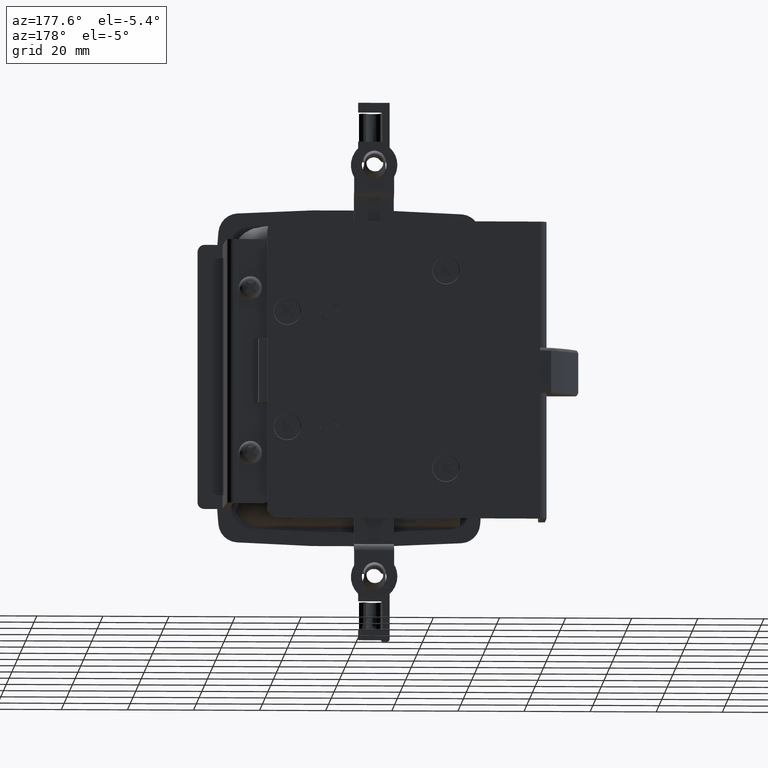
[diagram: clean part render]
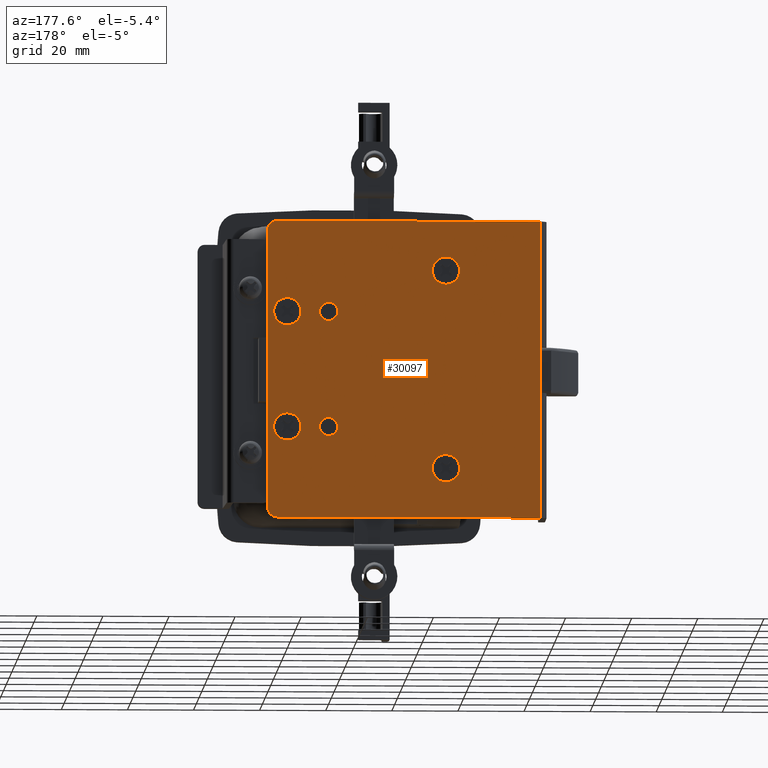
[diagram: same view with one face highlighted and labeled with its STEP entity id]
A machine part, auxiliary view. The second image highlights one B-rep face of the part: STEP entity #30097.
In plain terms, the highlighted face is a freeform B-spline surface patch.
Its self-contained STEP definition (entity closure, byte-faithful):
#23551=CARTESIAN_POINT('',(9.392974638647981,6.938894E-017,-19.494479051379908));
#23552=VERTEX_POINT('',#23551);
#23558=CARTESIAN_POINT('',(7.499999999999770,0.0,-20.249700000000001));
#23559=VERTEX_POINT('',#23558);
#23560=CARTESIAN_POINT('',(7.499999999999770,0.0,-20.249700000000001));
#23561=CARTESIAN_POINT('',(7.826263554981595,1.195953E-017,-20.249951064258081));
#23562=CARTESIAN_POINT('',(8.522020938642347,3.746323E-017,-20.124346349325911));
#23563=CARTESIAN_POINT('',(9.125025995519756,5.956700E-017,-19.749316332272869));
#23564=CARTESIAN_POINT('',(9.392974638647981,6.938894E-017,-19.494479051379908));
#23565=B_SPLINE_CURVE_WITH_KNOTS('',3,(#23560,#23561,#23562,#23563,#23564),.UNSPECIFIED.,.F.,.U.,(4,1,4),(0.000000058086645,0.978717669609080,2.087898830923840),.UNSPECIFIED.);
#23566=EDGE_CURVE('',#23559,#23552,#23565,.T.);
#23568=CARTESIAN_POINT('',(4.750000000000989,0.0,-17.499702587990580));
#23569=VERTEX_POINT('',#23568);
#23570=CARTESIAN_POINT('',(4.750000000000989,0.0,-17.499702587990580));
#23571=CARTESIAN_POINT('',(4.749932249997386,0.0,-17.747184538772260));
#23572=CARTESIAN_POINT('',(4.823308972530012,0.0,-18.287163541181140));
#23573=CARTESIAN_POINT('',(5.117386719806262,0.0,-18.929356856284159));
#23574=CARTESIAN_POINT('',(5.526757844278227,0.0,-19.440514583500839));
#23575=CARTESIAN_POINT('',(6.046198797164138,0.0,-19.878022725351830));
#23576=CARTESIAN_POINT('',(6.735025055406053,0.0,-20.183172980520190));
#23577=CARTESIAN_POINT('',(7.275022351697094,0.0,-20.249739535780389));
#23578=CARTESIAN_POINT('',(7.499999999999770,0.0,-20.249700000000001));
#23579=B_SPLINE_CURVE_WITH_KNOTS('',3,(#23570,#23571,#23572,#23573,#23574,#23575,#23576,#23577,#23578),.UNSPECIFIED.,.F.,.U.,(4,1,1,1,1,1,4),(0.000000238901056,0.742463711218214,1.619955159290388,2.092433719335633,2.699841917321896,3.644842161526945,4.319796838262708),.UNSPECIFIED.);
#23580=EDGE_CURVE('',#23569,#23559,#23579,.T.);
#23582=CARTESIAN_POINT('',(7.499999999999770,0.0,-14.749700000000001));
#23583=VERTEX_POINT('',#23582);
#23584=CARTESIAN_POINT('',(7.499999999999770,0.0,-14.749700000000001));
#23585=CARTESIAN_POINT('',(7.207507553550121,0.0,-14.749549545957530));
#23586=CARTESIAN_POINT('',(6.712640232423540,0.0,-14.829427717601609));
#23587=CARTESIAN_POINT('',(6.033502226651113,0.0,-15.140520711697340));
#23588=CARTESIAN_POINT('',(5.554907793116993,0.0,-15.523523718248750));
#23589=CARTESIAN_POINT('',(5.145713518715421,0.0,-16.034840220584019));
#23590=CARTESIAN_POINT('',(4.836948363174272,0.0,-16.667333154143542));
#23591=CARTESIAN_POINT('',(4.749855479191512,0.0,-17.207209987395839));
#23592=CARTESIAN_POINT('',(4.750000000000989,0.0,-17.499702587990580));
#23593=B_SPLINE_CURVE_WITH_KNOTS('',3,(#23584,#23585,#23586,#23587,#23588,#23589,#23590,#23591,#23592),.UNSPECIFIED.,.F.,.U.,(4,1,1,1,1,1,4),(0.000000235357179,0.877447612058197,1.484944863899620,2.227364861145336,2.699843741548231,3.442352379716247,4.319799755604054),.UNSPECIFIED.);
#23594=EDGE_CURVE('',#23583,#23569,#23593,.T.);
#23596=CARTESIAN_POINT('',(9.599778419402146,-4.259142E-017,-15.723908880947370));
#23597=VERTEX_POINT('',#23596);
#23598=CARTESIAN_POINT('',(9.599778419402146,-4.259142E-017,-15.723908880947370));
#23599=CARTESIAN_POINT('',(9.471235621314639,-3.998409E-017,-15.571865342144999));
#23600=CARTESIAN_POINT('',(9.162782567665193,-3.372750E-017,-15.278641156941630));
#23601=CARTESIAN_POINT('',(8.470322857909171,-1.968181E-017,-14.873270116866660));
#23602=CARTESIAN_POINT('',(7.873391424787077,-7.573786E-018,-14.749251439308781));
#23603=CARTESIAN_POINT('',(7.499999999999770,0.0,-14.749700000000001));
#23604=B_SPLINE_CURVE_WITH_KNOTS('',3,(#23598,#23599,#23600,#23601,#23602,#23603),.UNSPECIFIED.,.F.,.U.,(4,1,1,4),(0.000000049208554,0.597319528594782,1.269297858519159,2.389277966535293),.UNSPECIFIED.);
#23605=EDGE_CURVE('',#23597,#23583,#23604,.T.);
#23640=CARTESIAN_POINT('',(10.249999999998550,0.0,-17.499697412009422));
#23641=VERTEX_POINT('',#23640);
#23642=CARTESIAN_POINT('',(10.249999999998550,0.0,-17.499697412009422));
#23643=CARTESIAN_POINT('',(10.250170942212630,-7.235245E-018,-17.198034089753140));
#23644=CARTESIAN_POINT('',(10.143009102973179,-2.266593E-017,-16.554673565352740));
#23645=CARTESIAN_POINT('',(9.820810236408201,-3.633518E-017,-15.984753954179650));
#23646=CARTESIAN_POINT('',(9.599778419402146,-4.259142E-017,-15.723908880947370));
#23647=B_SPLINE_CURVE_WITH_KNOTS('',3,(#23642,#23643,#23644,#23645,#23646),.UNSPECIFIED.,.F.,.U.,(4,1,4),(0.000000053043742,0.904949435481034,1.930521907424331),.UNSPECIFIED.);
#23648=EDGE_CURVE('',#23641,#23597,#23647,.T.);
#23650=CARTESIAN_POINT('',(9.392974638647981,6.938894E-017,-19.494479051379908));
#23651=CARTESIAN_POINT('',(9.680138147818230,5.993806E-017,-19.222786536774901));
#23652=CARTESIAN_POINT('',(10.106455119182090,3.800006E-017,-18.592116529348989));
#23653=CARTESIAN_POINT('',(10.250341355649811,1.213241E-017,-17.848477903111640));
#23654=CARTESIAN_POINT('',(10.249999999998550,0.0,-17.499697412009422));
#23655=B_SPLINE_CURVE_WITH_KNOTS('',3,(#23650,#23651,#23652,#23653,#23654),.UNSPECIFIED.,.F.,.U.,(4,1,4),(0.000000056577864,1.185686681754036,2.231901906835335),.UNSPECIFIED.);
#23656=EDGE_CURVE('',#23552,#23641,#23655,.T.);
#23748=CARTESIAN_POINT('',(9.392974638647981,6.938894E-017,15.505220948620090));
#23749=VERTEX_POINT('',#23748);
#23755=CARTESIAN_POINT('',(7.499999999999770,0.0,14.750000000000000));
#23756=VERTEX_POINT('',#23755);
#23757=CARTESIAN_POINT('',(7.499999999999770,0.0,14.750000000000000));
#23758=CARTESIAN_POINT('',(7.695738235539381,7.174987E-018,14.749973927632039));
#23759=CARTESIAN_POINT('',(8.108944032486219,2.232147E-017,14.794288686319851));
#23760=CARTESIAN_POINT('',(8.771525184277230,4.660907E-017,15.022755810594379));
#23761=CARTESIAN_POINT('',(9.187958220978405,6.187385E-017,15.310508645319000));
#23762=CARTESIAN_POINT('',(9.392974638647981,6.938894E-017,15.505220948620090));
#23763=B_SPLINE_CURVE_WITH_KNOTS('',3,(#23757,#23758,#23759,#23760,#23761,#23762),.UNSPECIFIED.,.F.,.U.,(4,1,1,4),(0.000000058087488,0.587225061659178,1.239672892012644,2.087898830923832),.UNSPECIFIED.);
#23764=EDGE_CURVE('',#23756,#23749,#23763,.T.);
#23766=CARTESIAN_POINT('',(4.750000000000989,0.0,17.499997412009421));
#23767=VERTEX_POINT('',#23766);
#23768=CARTESIAN_POINT('',(4.750000000000989,0.0,17.499997412009421));
#23769=CARTESIAN_POINT('',(4.749699756502971,0.0,17.162474478204171));
#23770=CARTESIAN_POINT('',(4.850696958779079,0.0,16.622728546565209));
#23771=CARTESIAN_POINT('',(5.173971877038172,0.0,15.999886789821529));
#23772=CARTESIAN_POINT('',(5.526715693927850,0.0,15.559131152818370));
#23773=CARTESIAN_POINT('',(5.994320426950237,0.0,15.165595765983330));
#23774=CARTESIAN_POINT('',(6.667639237335955,0.0,14.836955622438820));
#23775=CARTESIAN_POINT('',(7.207506118379697,0.0,14.749854134695910));
#23776=CARTESIAN_POINT('',(7.499999999999770,0.0,14.750000000000000));
#23777=B_SPLINE_CURVE_WITH_KNOTS('',3,(#23768,#23769,#23770,#23771,#23772,#23773,#23774,#23775,#23776),.UNSPECIFIED.,.F.,.U.,(4,1,1,1,1,1,4),(0.000000238901785,1.012450622720358,1.619955159290957,2.092433719336195,2.699841917322345,3.442350053798344,4.319796838262680),.UNSPECIFIED.);
#23778=EDGE_CURVE('',#23767,#23756,#23777,.T.);
#23780=CARTESIAN_POINT('',(7.499999999999770,0.0,20.250000000000000));
#23781=VERTEX_POINT('',#23780);
#23782=CARTESIAN_POINT('',(7.499999999999770,0.0,20.250000000000000));
#23783=CARTESIAN_POINT('',(7.207502461676254,0.0,20.250158025136152));
#23784=CARTESIAN_POINT('',(6.735147593369746,0.0,20.173887506671480));
#23785=CARTESIAN_POINT('',(6.156467562549572,0.0,19.917299943608690));
#23786=CARTESIAN_POINT('',(5.653626956522855,0.0,19.572454793617570));
#23787=CARTESIAN_POINT('',(5.256582298243440,0.0,19.134317147192590));
#23788=CARTESIAN_POINT('',(4.864543118682922,0.0,18.422094153949519));
#23789=CARTESIAN_POINT('',(4.749469684857757,0.0,17.882585791773771));
#23790=CARTESIAN_POINT('',(4.750000000000989,0.0,17.499997412009421));
#23791=B_SPLINE_CURVE_WITH_KNOTS('',3,(#23782,#23783,#23784,#23785,#23786,#23787,#23788,#23789,#23790),.UNSPECIFIED.,.F.,.U.,(4,1,1,1,1,1,4),(0.000000235358634,0.877447612059124,1.417436020827118,1.889951152203333,2.699843741548375,3.172351064769249,4.319799755604052),.UNSPECIFIED.);
#23792=EDGE_CURVE('',#23781,#23767,#23791,.T.);
#23794=CARTESIAN_POINT('',(9.599778419402146,-4.259142E-017,19.275791119052631));
#23795=VERTEX_POINT('',#23794);
#23796=CARTESIAN_POINT('',(9.599778419402146,-4.259142E-017,19.275791119052631));
#23797=CARTESIAN_POINT('',(9.455180573780515,-3.965843E-017,19.446863034809802));
#23798=CARTESIAN_POINT('',(9.142250357259973,-3.331103E-017,19.736261644167872));
#23799=CARTESIAN_POINT('',(8.445428609600070,-1.917686E-017,20.131583717665990));
#23800=CARTESIAN_POINT('',(7.873400080172290,-7.573961E-018,20.250452470047168));
#23801=CARTESIAN_POINT('',(7.499999999999770,0.0,20.250000000000000));
#23802=B_SPLINE_CURVE_WITH_KNOTS('',3,(#23796,#23797,#23798,#23799,#23800,#23801),.UNSPECIFIED.,.F.,.U.,(4,1,1,4),(0.000000049208364,0.671988540497546,1.269297858519130,2.389277966535291),.UNSPECIFIED.);
#23803=EDGE_CURVE('',#23795,#23781,#23802,.T.);
#23838=CARTESIAN_POINT('',(10.249999999998550,0.0,17.500002587990579));
#23839=VERTEX_POINT('',#23838);
#23840=CARTESIAN_POINT('',(10.249999999998550,0.0,17.500002587990579));
#23841=CARTESIAN_POINT('',(10.250271878751390,-8.199969E-018,17.841888694767409));
#23842=CARTESIAN_POINT('',(10.128389472432900,-2.362810E-017,18.485142726974921));
#23843=CARTESIAN_POINT('',(9.794704427054407,-3.706959E-017,19.045566082486459));
#23844=CARTESIAN_POINT('',(9.599778419402146,-4.259142E-017,19.275791119052631));
#23845=B_SPLINE_CURVE_WITH_KNOTS('',3,(#23840,#23841,#23842,#23843,#23844),.UNSPECIFIED.,.F.,.U.,(4,1,4),(0.000000053044696,1.025572524936199,1.930521907424325),.UNSPECIFIED.);
#23846=EDGE_CURVE('',#23839,#23795,#23845,.T.);
#23848=CARTESIAN_POINT('',(9.392974638647981,6.938894E-017,15.505220948620090));
#23849=CARTESIAN_POINT('',(9.680137750061061,5.993810E-017,15.776912353041430));
#23850=CARTESIAN_POINT('',(10.106454436734870,3.800006E-017,16.407583634354090));
#23851=CARTESIAN_POINT('',(10.250342129732180,1.213240E-017,17.151222639714820));
#23852=CARTESIAN_POINT('',(10.249999999998550,0.0,17.500002587990579));
#23853=B_SPLINE_CURVE_WITH_KNOTS('',3,(#23848,#23849,#23850,#23851,#23852),.UNSPECIFIED.,.F.,.U.,(4,1,4),(0.000000056577628,1.185686681754020,2.231901906835337),.UNSPECIFIED.);
#23854=EDGE_CURVE('',#23749,#23839,#23853,.T.);
#24106=CARTESIAN_POINT('',(22.967953055463170,-0.000000272506873,-20.388059177642621));
#24107=VERTEX_POINT('',#24106);
#24113=CARTESIAN_POINT('',(20.0,0.0,-21.641121356237448));
#24114=VERTEX_POINT('',#24113);
#24115=CARTESIAN_POINT('',(20.0,0.0,-21.641121356237448));
#24116=CARTESIAN_POINT('',(20.448123969921660,-0.000000041145146,-21.641387439538111));
#24117=CARTESIAN_POINT('',(21.068376251546830,-0.000000098094500,-21.539425842973330));
#24118=CARTESIAN_POINT('',(22.091811538072399,-0.000000192062681,-21.122294243967922));
#24119=CARTESIAN_POINT('',(22.631633343783449,-0.000000241627195,-20.734201663899299));
#24120=CARTESIAN_POINT('',(22.967953055463170,-0.000000272506873,-20.388059177642621));
#24121=B_SPLINE_CURVE_WITH_KNOTS('',3,(#24115,#24116,#24117,#24118,#24119,#24120),.UNSPECIFIED.,.F.,.U.,(4,1,1,4),(0.000096735580799,1.344344023281049,1.861366757800407,3.309017337099033),.UNSPECIFIED.);
#24122=EDGE_CURVE('',#24114,#24107,#24121,.T.);
#24124=CARTESIAN_POINT('',(15.858578643763130,0.0,-17.499702180860179));
#24125=VERTEX_POINT('',#24124);
#24126=CARTESIAN_POINT('',(15.858578643763130,0.0,-17.499702180860179));
#24127=CARTESIAN_POINT('',(15.858443372362640,0.0,-17.872422195184139));
#24128=CARTESIAN_POINT('',(15.936902445683200,0.0,-18.448324807887481));
#24129=CARTESIAN_POINT('',(16.268739204838049,0.0,-19.376047775229509));
#24130=CARTESIAN_POINT('',(16.745074375301961,0.0,-20.128401139909130));
#24131=CARTESIAN_POINT('',(17.386363604744449,0.0,-20.738640223442172));
#24132=CARTESIAN_POINT('',(18.007797683072511,0.0,-21.153894161435669));
#24133=CARTESIAN_POINT('',(18.848141970733050,0.0,-21.526512400723121));
#24134=CARTESIAN_POINT('',(19.559503974484699,0.0,-21.641355444095328));
#24135=CARTESIAN_POINT('',(20.0,0.0,-21.641121356237448));
#24136=B_SPLINE_CURVE_WITH_KNOTS('',3,(#24126,#24127,#24128,#24129,#24130,#24131,#24132,#24133,#24134,#24135),.UNSPECIFIED.,.F.,.U.,(4,1,1,1,1,1,1,4),(0.000000082309549,1.118130405993442,1.728021925783009,2.947812615304385,3.760975535676382,4.370872782941178,5.184065234066199,6.505491469528478),.UNSPECIFIED.);
#24137=EDGE_CURVE('',#24125,#24114,#24136,.T.);
#24139=CARTESIAN_POINT('',(20.0,0.0,-13.358278643762560));
#24140=VERTEX_POINT('',#24139);
#24141=CARTESIAN_POINT('',(20.0,0.0,-13.358278643762560));
#24142=CARTESIAN_POINT('',(19.661189797916670,0.0,-13.358232916283219));
#24143=CARTESIAN_POINT('',(18.881853773331610,0.0,-13.454289267692589));
#24144=CARTESIAN_POINT('',(17.904171618617731,0.0,-13.873309818095461));
#24145=CARTESIAN_POINT('',(17.125919501066239,0.0,-14.480985675624710));
#24146=CARTESIAN_POINT('',(16.592201988196440,0.0,-15.099657980864601));
#24147=CARTESIAN_POINT('',(16.206258442120941,0.0,-15.780987798170569));
#24148=CARTESIAN_POINT('',(15.929668144443379,0.0,-16.584925956400170));
#24149=CARTESIAN_POINT('',(15.858497848656921,0.0,-17.160876714913542));
#24150=CARTESIAN_POINT('',(15.858578643763130,0.0,-17.499702180860179));
#24151=B_SPLINE_CURVE_WITH_KNOTS('',3,(#24141,#24142,#24143,#24144,#24145,#24146,#24147,#24148,#24149,#24150),.UNSPECIFIED.,.F.,.U.,(4,1,1,1,1,1,1,4),(0.000000079325975,1.016481725447924,2.337921139254153,3.151104274363929,3.964275149532482,4.777471923866482,5.489016376507371,6.505493927927482),.UNSPECIFIED.);
#24152=EDGE_CURVE('',#24140,#24125,#24151,.T.);
#24154=CARTESIAN_POINT('',(23.053376710480531,0.000000271129596,-14.701795738188240));
#24155=VERTEX_POINT('',#24154);
#24156=CARTESIAN_POINT('',(23.053376710480531,0.000000271129596,-14.701795738188240));
#24157=CARTESIAN_POINT('',(22.787688480453831,0.000000247537374,-14.411643975931771));
#24158=CARTESIAN_POINT('',(22.172821727772579,0.000000192939271,-13.907937011442440));
#24159=CARTESIAN_POINT('',(21.108679998278081,0.000000098447060,-13.456100538670221));
#24160=CARTESIAN_POINT('',(20.357647220657618,0.000000031757872,-13.358194943027440));
#24161=CARTESIAN_POINT('',(20.0,0.0,-13.358278643762560));
#24162=B_SPLINE_CURVE_WITH_KNOTS('',3,(#24156,#24157,#24158,#24159,#24160,#24161),.UNSPECIFIED.,.F.,.U.,(4,1,1,4),(0.000000054911521,1.180238921685879,2.360450144642075,3.433392666382364),.UNSPECIFIED.);
#24163=EDGE_CURVE('',#24155,#24140,#24162,.T.);
#24244=CARTESIAN_POINT('',(24.141421356236869,0.0,-17.499697819139779));
#24245=VERTEX_POINT('',#24244);
#24246=CARTESIAN_POINT('',(24.141421356236869,0.0,-17.499697819139779));
#24247=CARTESIAN_POINT('',(24.141650307022569,0.000000040315686,-17.083662957683810));
#24248=CARTESIAN_POINT('',(24.048979190076921,0.000000099218206,-16.475822618056618));
#24249=CARTESIAN_POINT('',(23.676964230303380,0.000000191926927,-15.519121739788719));
#24250=CARTESIAN_POINT('',(23.334601906980701,0.000000241420460,-15.008376921205571));
#24251=CARTESIAN_POINT('',(23.053376710480531,0.000000271129596,-14.701795738188240));
#24252=B_SPLINE_CURVE_WITH_KNOTS('',3,(#24246,#24247,#24248,#24249,#24250,#24251),.UNSPECIFIED.,.F.,.U.,(4,1,1,4),(0.000000034138691,1.248022729357504,1.824005315372092,3.072028010613255),.UNSPECIFIED.);
#24253=EDGE_CURVE('',#24245,#24155,#24252,.T.);
#24255=CARTESIAN_POINT('',(22.967953055463170,-0.000000272506873,-20.388059177642621));
#24256=CARTESIAN_POINT('',(23.176987429940301,-0.000000252248684,-20.173338032644239));
#24257=CARTESIAN_POINT('',(23.527459051764399,-0.000000209915517,-19.724639234995749));
#24258=CARTESIAN_POINT('',(24.001128754854200,-0.000000119346497,-18.764677862052778));
#24259=CARTESIAN_POINT('',(24.141866564172151,-0.000000047127053,-17.999207902005441));
#24260=CARTESIAN_POINT('',(24.141421356236869,0.0,-17.499697819139779));
#24261=B_SPLINE_CURVE_WITH_KNOTS('',3,(#24255,#24256,#24257,#24258,#24259,#24260),.UNSPECIFIED.,.F.,.U.,(4,1,1,4),(0.000000022749982,0.899004699188015,1.698119368686478,3.196460936197835),.UNSPECIFIED.);
#24262=EDGE_CURVE('',#24107,#24245,#24261,.T.);
#24504=CARTESIAN_POINT('',(22.967953055463170,-0.000000272506873,14.611640822357380));
#24505=VERTEX_POINT('',#24504);
#24511=CARTESIAN_POINT('',(20.0,0.0,13.358578643762559));
#24512=VERTEX_POINT('',#24511);
#24513=CARTESIAN_POINT('',(20.0,0.0,13.358578643762559));
#24514=CARTESIAN_POINT('',(20.310210879168618,-0.000000028482457,13.358528493799820));
#24515=CARTESIAN_POINT('',(20.965103802762489,-0.000000088612392,13.432477873177429));
#24516=CARTESIAN_POINT('',(22.009504322037149,-0.000000184505526,13.813079519892110));
#24517=CARTESIAN_POINT('',(22.655608503237868,-0.000000243828510,14.290335054617611));
#24518=CARTESIAN_POINT('',(22.967953055463170,-0.000000272506873,14.611640822357380));
#24519=B_SPLINE_CURVE_WITH_KNOTS('',3,(#24513,#24514,#24515,#24516,#24517,#24518),.UNSPECIFIED.,.F.,.U.,(4,1,1,4),(0.000096735580643,0.930730204104158,1.964770049481058,3.309017337099057),.UNSPECIFIED.);
#24520=EDGE_CURVE('',#24512,#24505,#24519,.T.);
#24522=CARTESIAN_POINT('',(15.858578643763130,0.0,17.499997819139811));
#24523=VERTEX_POINT('',#24522);
#24524=CARTESIAN_POINT('',(15.858578643763130,0.0,17.499997819139811));
#24525=CARTESIAN_POINT('',(15.858330790488170,0.0,17.059488405721378));
#24526=CARTESIAN_POINT('',(15.962303339876790,0.0,16.415928077326871));
#24527=CARTESIAN_POINT('',(16.339337881479501,0.0,15.505629396635650));
#24528=CARTESIAN_POINT('',(16.794520333720470,0.0,14.824431029369560));
#24529=CARTESIAN_POINT('',(17.484935257553730,0.0,14.167079201011690));
#24530=CARTESIAN_POINT('',(18.216944366918639,0.0,13.728344924111511));
#24531=CARTESIAN_POINT('',(19.085230194434970,0.0,13.429677029254369));
#24532=CARTESIAN_POINT('',(19.661174155251629,0.0,13.358496194879560));
#24533=CARTESIAN_POINT('',(20.0,0.0,13.358578643762559));
#24534=B_SPLINE_CURVE_WITH_KNOTS('',3,(#24524,#24525,#24526,#24527,#24528,#24529,#24530,#24531,#24532,#24533),.UNSPECIFIED.,.F.,.U.,(4,1,1,1,1,1,1,4),(0.000000082308434,1.321427850027707,1.931320749478732,2.947812615304208,3.760975535676210,4.777470118838913,5.489014301073903,6.505491469528441),.UNSPECIFIED.);
#24535=EDGE_CURVE('',#24523,#24512,#24534,.T.);
#24537=CARTESIAN_POINT('',(20.0,0.0,21.641421356237451));
#24538=VERTEX_POINT('',#24537);
#24539=CARTESIAN_POINT('',(20.0,0.0,21.641421356237451));
#24540=CARTESIAN_POINT('',(19.559497815496389,0.0,21.641687852868419));
#24541=CARTESIAN_POINT('',(18.848150601818020,0.0,21.526776309557150));
#24542=CARTESIAN_POINT('',(18.007790857754710,0.0,21.154202553140671));
#24543=CARTESIAN_POINT('',(17.386362304239380,0.0,20.738931660632151));
#24544=CARTESIAN_POINT('',(16.745082497144939,0.0,20.128705060497580));
#24545=CARTESIAN_POINT('',(16.213745795453029,0.0,19.289521475690091));
#24546=CARTESIAN_POINT('',(15.915318307252820,0.0,18.347033606775199));
#24547=CARTESIAN_POINT('',(15.858546810276611,0.0,17.771050660196590));
#24548=CARTESIAN_POINT('',(15.858578643763130,0.0,17.499997819139811));
#24549=B_SPLINE_CURVE_WITH_KNOTS('',3,(#24539,#24540,#24541,#24542,#24543,#24544,#24545,#24546,#24547,#24548),.UNSPECIFIED.,.F.,.U.,(4,1,1,1,1,1,1,4),(0.000000079325273,1.321428346710914,2.134621186451290,2.744518550268507,3.557681369114319,4.777471923866235,5.692316130952902,6.505493927927504),.UNSPECIFIED.);
#24550=EDGE_CURVE('',#24538,#24523,#24549,.T.);
#24552=CARTESIAN_POINT('',(23.053376710480531,0.000000271129596,20.297904261811759));
#24553=VERTEX_POINT('',#24552);
#24554=CARTESIAN_POINT('',(23.053376710480531,0.000000271129596,20.297904261811759));
#24555=CARTESIAN_POINT('',(22.848033727946181,0.000000252895829,20.522065893287671));
#24556=CARTESIAN_POINT('',(22.360617223419890,0.000000209614881,20.948557335008989));
#24557=CARTESIAN_POINT('',(21.340931054061919,0.000000119070174,21.487102550656971));
#24558=CARTESIAN_POINT('',(20.500754226288979,0.000000044465293,21.641808123196061));
#24559=CARTESIAN_POINT('',(20.0,0.0,21.641421356237451));
#24560=B_SPLINE_CURVE_WITH_KNOTS('',3,(#24554,#24555,#24556,#24557,#24558,#24559),.UNSPECIFIED.,.F.,.U.,(4,1,1,4),(0.000000054910383,0.911995341226648,1.931272631086115,3.433392666382364),.UNSPECIFIED.);
#24561=EDGE_CURVE('',#24553,#24538,#24560,.T.);
#24640=CARTESIAN_POINT('',(24.141421356236869,0.0,17.500002180860221));
#24641=VERTEX_POINT('',#24640);
#24642=CARTESIAN_POINT('',(24.141421356236869,0.0,17.500002180860221));
#24643=CARTESIAN_POINT('',(24.142056456684280,0.000000052724999,18.044094074902809));
#24644=CARTESIAN_POINT('',(23.936459630991109,0.000000151899677,19.067520021241950));
#24645=CARTESIAN_POINT('',(23.377945951246659,0.000000236855614,19.944216505057920));
#24646=CARTESIAN_POINT('',(23.053376710480531,0.000000271129596,20.297904261811759));
#24647=B_SPLINE_CURVE_WITH_KNOTS('',3,(#24642,#24643,#24644,#24645,#24646),.UNSPECIFIED.,.F.,.U.,(4,1,4),(0.000000034138110,1.632009035801975,3.072028010613250),.UNSPECIFIED.);
#24648=EDGE_CURVE('',#24641,#24553,#24647,.T.);
#24650=CARTESIAN_POINT('',(22.967953055463170,-0.000000272506873,14.611640822357380));
#24651=CARTESIAN_POINT('',(23.176978087643018,-0.000000252248737,14.826361412959990));
#24652=CARTESIAN_POINT('',(23.527476928957761,-0.000000209915683,15.275059013110731));
#24653=CARTESIAN_POINT('',(24.001114001107219,-0.000000119346503,16.235022073303831));
#24654=CARTESIAN_POINT('',(24.141872310329440,-0.000000047127002,17.000492643270860));
#24655=CARTESIAN_POINT('',(24.141421356236869,0.0,17.500002180860221));
#24656=B_SPLINE_CURVE_WITH_KNOTS('',3,(#24650,#24651,#24652,#24653,#24654,#24655),.UNSPECIFIED.,.F.,.U.,(4,1,1,4),(0.000000022750254,0.899004699188048,1.698119368686374,3.196460936197840),.UNSPECIFIED.);
#24657=EDGE_CURVE('',#24505,#24641,#24656,.T.);
#24897=CARTESIAN_POINT('',(-25.032046944536830,-0.000000272506873,-32.888059177642617));
#24898=VERTEX_POINT('',#24897);
#24904=CARTESIAN_POINT('',(-28.0,0.0,-34.141121356237441));
#24905=VERTEX_POINT('',#24904);
#24906=CARTESIAN_POINT('',(-28.0,0.0,-34.141121356237441));
#24907=CARTESIAN_POINT('',(-27.551874265396091,-0.000000041145308,-34.141393028911793));
#24908=CARTESIAN_POINT('',(-26.931624455257410,-0.000000098094435,-34.039423092187150));
#24909=CARTESIAN_POINT('',(-25.908187839207571,-0.000000192062739,-33.622296656673711));
#24910=CARTESIAN_POINT('',(-25.368367053012260,-0.000000241627159,-33.234200171279980));
#24911=CARTESIAN_POINT('',(-25.032046944536830,-0.000000272506873,-32.888059177642617));
#24912=B_SPLINE_CURVE_WITH_KNOTS('',3,(#24906,#24907,#24908,#24909,#24910,#24911),.UNSPECIFIED.,.F.,.U.,(4,1,1,4),(0.000096735579801,1.344344023280489,1.861366757800070,3.309017337099057),.UNSPECIFIED.);
#24913=EDGE_CURVE('',#24905,#24898,#24912,.T.);
#24915=CARTESIAN_POINT('',(-32.141421356236869,0.0,-29.999702180860190));
#24916=VERTEX_POINT('',#24915);
#24917=CARTESIAN_POINT('',(-32.141421356236869,0.0,-29.999702180860190));
#24918=CARTESIAN_POINT('',(-32.141661758933061,0.0,-30.440204155610271));
#24919=CARTESIAN_POINT('',(-32.026792660808240,0.0,-31.151545947999381));
#24920=CARTESIAN_POINT('',(-31.626599409975508,0.0,-32.054147500391871));
#24921=CARTESIAN_POINT('',(-31.077828135107691,0.0,-32.833673087500813));
#24922=CARTESIAN_POINT('',(-30.403529277481351,0.0,-33.415274927020832));
#24923=CARTESIAN_POINT('',(-29.654383640714361,0.0,-33.815546463064948));
#24924=CARTESIAN_POINT('',(-28.914773663675899,0.0,-34.070030420833511));
#24925=CARTESIAN_POINT('',(-28.338826427739320,0.0,-34.141203488743571));
#24926=CARTESIAN_POINT('',(-28.0,0.0,-34.141121356237441));
#24927=B_SPLINE_CURVE_WITH_KNOTS('',3,(#24917,#24918,#24919,#24920,#24921,#24922,#24923,#24924,#24925,#24926),.UNSPECIFIED.,.F.,.U.,(4,1,1,1,1,1,1,4),(0.000000082309736,1.321427850028872,2.134620381209950,2.947812615305126,4.167573064141987,4.777470118839210,5.489014301074024,6.505491469528479),.UNSPECIFIED.);
#24928=EDGE_CURVE('',#24916,#24905,#24927,.T.);
#24930=CARTESIAN_POINT('',(-28.0,0.0,-25.858278643762560));
#24931=VERTEX_POINT('',#24930);
#24932=CARTESIAN_POINT('',(-28.0,0.0,-25.858278643762560));
#24933=CARTESIAN_POINT('',(-28.440500697537729,0.0,-25.858016256620040));
#24934=CARTESIAN_POINT('',(-29.151854098446549,0.0,-25.972917735178939));
#24935=CARTESIAN_POINT('',(-29.992203862918359,0.0,-26.345503526519028));
#24936=CARTESIAN_POINT('',(-30.613650544647030,0.0,-26.760755129009091));
#24937=CARTESIAN_POINT('',(-31.254892049312829,0.0,-27.371022674029248));
#24938=CARTESIAN_POINT('',(-31.749604400782140,0.0,-28.152286453419091));
#24939=CARTESIAN_POINT('',(-32.070309980613601,0.0,-29.084937008432039));
#24940=CARTESIAN_POINT('',(-32.141503596544823,0.0,-29.660877983610689));
#24941=CARTESIAN_POINT('',(-32.141421356236869,0.0,-29.999702180860190));
#24942=B_SPLINE_CURVE_WITH_KNOTS('',3,(#24932,#24933,#24934,#24935,#24936,#24937,#24938,#24939,#24940,#24941),.UNSPECIFIED.,.F.,.U.,(4,1,1,1,1,1,1,4),(0.000000079322517,1.321428346708784,2.134621186449572,2.744518550267083,3.557681369113257,4.777471923865619,5.489016376506826,6.505493927927495),.UNSPECIFIED.);
#24943=EDGE_CURVE('',#24931,#24916,#24942,.T.);
#24945=CARTESIAN_POINT('',(-24.946623289519479,0.000000271129596,-27.201795738188249));
#24946=VERTEX_POINT('',#24945);
#24947=CARTESIAN_POINT('',(-24.946623289519479,0.000000271129596,-27.201795738188249));
#24948=CARTESIAN_POINT('',(-25.151971763574601,0.000000252895341,-26.977645084508190));
#24949=CARTESIAN_POINT('',(-25.666433417809809,0.000000207212874,-26.527383677336370));
#24950=CARTESIAN_POINT('',(-26.694736666665420,0.000000115903000,-26.001319352910912));
#24951=CARTESIAN_POINT('',(-27.535035890422609,0.000000041287251,-25.857983135374059));
#24952=CARTESIAN_POINT('',(-28.0,0.0,-25.858278643762560));
#24953=B_SPLINE_CURVE_WITH_KNOTS('',3,(#24947,#24948,#24949,#24950,#24951,#24952),.UNSPECIFIED.,.F.,.U.,(4,1,1,4),(0.000000054910162,0.911995341226398,2.038564622415370,3.433392666382384),.UNSPECIFIED.);
#24954=EDGE_CURVE('',#24946,#24931,#24953,.T.);
#25036=CARTESIAN_POINT('',(-23.858578643763138,0.0,-29.999697819139779));
#25037=VERTEX_POINT('',#25036);
#25038=CARTESIAN_POINT('',(-23.858578643763138,0.0,-29.999697819139779));
#25039=CARTESIAN_POINT('',(-23.858187966741259,0.000000046519447,-29.519643684120510));
#25040=CARTESIAN_POINT('',(-23.988054886456329,0.000000117814464,-28.783919878061230));
#25041=CARTESIAN_POINT('',(-24.426560532977341,0.000000207958285,-27.853687325224350));
#25042=CARTESIAN_POINT('',(-24.752021765433181,0.000000250556265,-27.414100667611461));
#25043=CARTESIAN_POINT('',(-24.946623289519479,0.000000271129596,-27.201795738188249));
#25044=B_SPLINE_CURVE_WITH_KNOTS('',3,(#25038,#25039,#25040,#25041,#25042,#25043),.UNSPECIFIED.,.F.,.U.,(4,1,1,4),(0.000000034138837,1.440019009014746,2.208016334582460,3.072028010613237),.UNSPECIFIED.);
#25045=EDGE_CURVE('',#25037,#24946,#25044,.T.);
#25047=CARTESIAN_POINT('',(-25.032046944536830,-0.000000272506873,-32.888059177642617));
#25048=CARTESIAN_POINT('',(-24.823008984131171,-0.000000252249019,-32.673341580370973));
#25049=CARTESIAN_POINT('',(-24.472546404985849,-0.000000209915234,-32.224636224456233));
#25050=CARTESIAN_POINT('',(-23.998866512405680,-0.000000119346643,-31.264679408971730));
#25051=CARTESIAN_POINT('',(-23.858136894257129,-0.000000047127087,-30.499208260091692));
#25052=CARTESIAN_POINT('',(-23.858578643763138,0.0,-29.999697819139779));
#25053=B_SPLINE_CURVE_WITH_KNOTS('',3,(#25047,#25048,#25049,#25050,#25051,#25052),.UNSPECIFIED.,.F.,.U.,(4,1,1,4),(0.000000022750999,0.899004699188579,1.698119368686725,3.196460936197821),.UNSPECIFIED.);
#25054=EDGE_CURVE('',#24898,#25037,#25053,.T.);
#25297=CARTESIAN_POINT('',(-25.032046944536830,-0.000000272506874,27.111640822357380));
#25298=VERTEX_POINT('',#25297);
#25304=CARTESIAN_POINT('',(-28.0,0.0,25.858578643762559));
#25305=VERTEX_POINT('',#25304);
#25306=CARTESIAN_POINT('',(-28.0,0.0,25.858578643762559));
#25307=CARTESIAN_POINT('',(-27.689789026271640,-0.000000028482466,25.858528511646568));
#25308=CARTESIAN_POINT('',(-27.034896847885900,-0.000000088612333,25.932477589626728));
#25309=CARTESIAN_POINT('',(-25.990495120146939,-0.000000184505578,26.313079813932610));
#25310=CARTESIAN_POINT('',(-25.344391711401791,-0.000000243828491,26.790334634247291));
#25311=CARTESIAN_POINT('',(-25.032046944536830,-0.000000272506874,27.111640822357380));
#25312=B_SPLINE_CURVE_WITH_KNOTS('',3,(#25306,#25307,#25308,#25309,#25310,#25311),.UNSPECIFIED.,.F.,.U.,(4,1,1,4),(0.000096735579117,0.930730204102944,1.964770049480385,3.309017337099064),.UNSPECIFIED.);
#25313=EDGE_CURVE('',#25305,#25298,#25312,.T.);
#25315=CARTESIAN_POINT('',(-32.141421356236869,0.0,29.999997819139811));
#25316=VERTEX_POINT('',#25315);
#25317=CARTESIAN_POINT('',(-32.141421356236869,0.0,29.999997819139811));
#25318=CARTESIAN_POINT('',(-32.141505445021110,0.0,29.661172427305871));
#25319=CARTESIAN_POINT('',(-32.070321990263942,0.0,29.085221574316659));
#25320=CARTESIAN_POINT('',(-31.793737577130130,0.0,28.281291164111408));
#25321=CARTESIAN_POINT('',(-31.340748439552339,0.0,27.481393668407492));
#25322=CARTESIAN_POINT('',(-30.679546168507191,0.0,26.786799593940000));
#25323=CARTESIAN_POINT('',(-29.931534090402170,0.0,26.313408225802160));
#25324=CARTESIAN_POINT('',(-29.084083600274671,0.0,25.962300735976250));
#25325=CARTESIAN_POINT('',(-28.440506721512630,0.0,25.858305735394239));
#25326=CARTESIAN_POINT('',(-28.0,0.0,25.858578643762559));
#25327=B_SPLINE_CURVE_WITH_KNOTS('',3,(#25317,#25318,#25319,#25320,#25321,#25322,#25323,#25324,#25325,#25326),.UNSPECIFIED.,.F.,.U.,(4,1,1,1,1,1,1,4),(0.000000082305658,1.016481343380503,1.728021925780507,2.541219624703260,3.760975535675035,4.574172007420774,5.184065234065519,6.505491469528473),.UNSPECIFIED.);
#25328=EDGE_CURVE('',#25316,#25305,#25327,.T.);
#25330=CARTESIAN_POINT('',(-28.0,0.0,34.141421356237437));
#25331=VERTEX_POINT('',#25330);
#25332=CARTESIAN_POINT('',(-28.0,0.0,34.141421356237437));
#25333=CARTESIAN_POINT('',(-28.440496485418560,0.0,34.141655343026137));
#25334=CARTESIAN_POINT('',(-29.151859591320250,0.0,34.026810783674428));
#25335=CARTESIAN_POINT('',(-29.992203119200099,0.0,33.654190827569877));
#25336=CARTESIAN_POINT('',(-30.613651362122329,0.0,33.238943816606067));
#25337=CARTESIAN_POINT('',(-31.254884188548370,0.0,32.628680474055052));
#25338=CARTESIAN_POINT('',(-31.786281603783280,0.0,31.789538037997950));
#25339=CARTESIAN_POINT('',(-32.084674508906673,0.0,30.847027370954041));
#25340=CARTESIAN_POINT('',(-32.141452534947518,0.0,30.271052996227439));
#25341=CARTESIAN_POINT('',(-32.141421356236869,0.0,29.999997819139811));
#25342=B_SPLINE_CURVE_WITH_KNOTS('',3,(#25332,#25333,#25334,#25335,#25336,#25337,#25338,#25339,#25340,#25341),.UNSPECIFIED.,.F.,.U.,(4,1,1,1,1,1,1,4),(0.000000079321802,1.321428346707950,2.134621186448696,2.744518550266275,3.557681369112722,4.777471923865337,5.692316130952545,6.505493927927500),.UNSPECIFIED.);
#25343=EDGE_CURVE('',#25331,#25316,#25342,.T.);
#25345=CARTESIAN_POINT('',(-24.946623289519479,0.000000271129596,32.797904261811752));
#25346=VERTEX_POINT('',#25345);
#25347=CARTESIAN_POINT('',(-24.946623289519479,0.000000271129596,32.797904261811752));
#25348=CARTESIAN_POINT('',(-25.260543728207249,0.000000243254515,33.140931823839708));
#25349=CARTESIAN_POINT('',(-25.804960898313940,0.000000194912099,33.563419284586402));
#25350=CARTESIAN_POINT('',(-26.855750246150979,0.000000101605535,34.025703922186104));
#25351=CARTESIAN_POINT('',(-27.534997392882101,0.000000041290670,34.141747320213611));
#25352=CARTESIAN_POINT('',(-28.0,0.0,34.141421356237437));
#25353=B_SPLINE_CURVE_WITH_KNOTS('',3,(#25347,#25348,#25349,#25350,#25351,#25352),.UNSPECIFIED.,.F.,.U.,(4,1,1,4),(0.000000054908742,1.394828098987304,2.038564622414987,3.433392666382389),.UNSPECIFIED.);
#25354=EDGE_CURVE('',#25346,#25331,#25353,.T.);
#25435=CARTESIAN_POINT('',(-23.858578643763138,0.0,30.000002180860221));
#25436=VERTEX_POINT('',#25435);
#25437=CARTESIAN_POINT('',(-23.858578643763138,0.0,30.000002180860221));
#25438=CARTESIAN_POINT('',(-23.858227670003249,0.000000046517719,30.480038483163611));
#25439=CARTESIAN_POINT('',(-24.038684972857538,0.000000145722087,31.503770835106721));
#25440=CARTESIAN_POINT('',(-24.578635189939799,0.000000232294407,32.397147476783672));
#25441=CARTESIAN_POINT('',(-24.946623289519479,0.000000271129596,32.797904261811752));
#25442=B_SPLINE_CURVE_WITH_KNOTS('',3,(#25437,#25438,#25439,#25440,#25441),.UNSPECIFIED.,.F.,.U.,(4,1,4),(0.000000034138167,1.440019009014428,3.072028010613245),.UNSPECIFIED.);
#25443=EDGE_CURVE('',#25436,#25346,#25442,.T.);
#25445=CARTESIAN_POINT('',(-25.032046944536830,-0.000000272506874,27.111640822357380));
#25446=CARTESIAN_POINT('',(-24.776499524750939,-0.000000247751096,27.374032940775781));
#25447=CARTESIAN_POINT('',(-24.436095647983350,-0.000000204500221,27.832458717870040));
#25448=CARTESIAN_POINT('',(-23.986640503531081,-0.000000113065236,28.801598626880502));
#25449=CARTESIAN_POINT('',(-23.858133234310252,-0.000000047127558,29.500486754683429));
#25450=CARTESIAN_POINT('',(-23.858578643763138,0.0,30.000002180860221));
#25451=B_SPLINE_CURVE_WITH_KNOTS('',3,(#25445,#25446,#25447,#25448,#25449,#25450),.UNSPECIFIED.,.F.,.U.,(4,1,1,4),(0.000000022750041,1.098783809979499,1.698119368686359,3.196460936197828),.UNSPECIFIED.);
#25452=EDGE_CURVE('',#25298,#25436,#25451,.T.);
#26590=CARTESIAN_POINT('',(-56.500000000000000,0.0,7.0));
#26591=VERTEX_POINT('',#26590);
#26597=CARTESIAN_POINT('',(-56.500000000000000,0.0,-6.999699999999921));
#26598=VERTEX_POINT('',#26597);
#26599=CARTESIAN_POINT('',(-56.500000000000000,0.0,7.0));
#26600=CARTESIAN_POINT('',(-56.500000000000000,0.0,-6.999699999999921));
#26601=QUASI_UNIFORM_CURVE('',1,(#26599,#26600),.UNSPECIFIED.,.F.,.U.);
#26602=EDGE_CURVE('',#26591,#26598,#26601,.T.);
#29562=CARTESIAN_POINT('',(23.001000000000001,0.0,-44.999699999999997));
#29563=VERTEX_POINT('',#29562);
#29569=CARTESIAN_POINT('',(26.001000000000001,0.0,-41.999699999999997));
#29570=VERTEX_POINT('',#29569);
#29571=CARTESIAN_POINT('',(26.001000000000001,0.0,-41.999699999999997));
#29572=CARTESIAN_POINT('',(26.001100575114410,0.0,-42.269685751385673));
#29573=CARTESIAN_POINT('',(25.937596479826521,0.0,-42.735961704153993));
#29574=CARTESIAN_POINT('',(25.697955019878250,0.0,-43.357237189498797));
#29575=CARTESIAN_POINT('',(25.381286751544110,0.0,-43.857291907023537));
#29576=CARTESIAN_POINT('',(24.973164078957829,0.0,-44.285964825432522));
#29577=CARTESIAN_POINT('',(24.489244854110090,0.0,-44.626770922997082));
#29578=CARTESIAN_POINT('',(23.835396999816670,0.0,-44.916681058017183));
#29579=CARTESIAN_POINT('',(23.320088967948340,0.0,-44.999856130430729));
#29580=CARTESIAN_POINT('',(23.001000000000001,0.0,-44.999699999999997));
#29581=B_SPLINE_CURVE_WITH_KNOTS('',3,(#29571,#29572,#29573,#29574,#29575,#29576,#29577,#29578,#29579,#29580),.UNSPECIFIED.,.F.,.U.,(4,1,1,1,1,1,1,4),(0.000000209626456,0.809944957933802,1.399025936107571,1.988123512091373,2.577103452349945,3.166198469627668,3.755279447801164,4.712507233014006),.UNSPECIFIED.);
#29582=EDGE_CURVE('',#29570,#29563,#29581,.T.);
#29622=CARTESIAN_POINT('',(26.001000000000001,0.0,42.0));
#29623=VERTEX_POINT('',#29622);
#29629=CARTESIAN_POINT('',(23.001000000000001,0.0,45.0));
#29630=VERTEX_POINT('',#29629);
#29631=CARTESIAN_POINT('',(23.001000000000001,0.0,45.0));
#29632=CARTESIAN_POINT('',(23.369195060857109,0.0,45.000328658234707));
#29633=CARTESIAN_POINT('',(24.031658035921229,0.0,44.876409154615352));
#29634=CARTESIAN_POINT('',(24.787193911760632,0.0,44.448410128082259));
#29635=CARTESIAN_POINT('',(25.358761316019500,0.0,43.904144709930257));
#29636=CARTESIAN_POINT('',(25.850012754558929,0.0,43.128693446855557));
#29637=CARTESIAN_POINT('',(26.001531667015669,0.0,42.417320438478882));
#29638=CARTESIAN_POINT('',(26.001000000000001,0.0,42.0));
#29639=B_SPLINE_CURVE_WITH_KNOTS('',3,(#29631,#29632,#29633,#29634,#29635,#29636,#29637,#29638),.UNSPECIFIED.,.F.,.U.,(4,1,1,1,1,4),(0.000000209628837,1.104489953151289,1.988123512091665,2.577103452349826,3.460743464843479,4.712507233014031),.UNSPECIFIED.);
#29640=EDGE_CURVE('',#29630,#29623,#29639,.T.);
#29663=CARTESIAN_POINT('',(-56.500000000000000,0.0,45.0));
#29664=VERTEX_POINT('',#29663);
#29665=CARTESIAN_POINT('',(23.001000000000001,0.0,45.0));
#29666=CARTESIAN_POINT('',(-56.500000000000000,0.0,45.0));
#29667=QUASI_UNIFORM_CURVE('',1,(#29665,#29666),.UNSPECIFIED.,.F.,.U.);
#29668=EDGE_CURVE('',#29630,#29664,#29667,.T.);
#29702=CARTESIAN_POINT('',(-56.500000000000000,0.0,-44.999699999999997));
#29703=VERTEX_POINT('',#29702);
#29704=CARTESIAN_POINT('',(23.001000000000001,0.0,-44.999699999999997));
#29705=CARTESIAN_POINT('',(-56.500000000000000,0.0,-44.999699999999997));
#29706=QUASI_UNIFORM_CURVE('',1,(#29704,#29705),.UNSPECIFIED.,.F.,.U.);
#29707=EDGE_CURVE('',#29563,#29703,#29706,.T.);
#29896=CARTESIAN_POINT('',(-56.500000000000000,0.0,-44.999699999999997));
#29897=CARTESIAN_POINT('',(-56.500000000000000,0.0,-6.999699999999921));
#29898=QUASI_UNIFORM_CURVE('',1,(#29896,#29897),.UNSPECIFIED.,.F.,.U.);
#29899=EDGE_CURVE('',#29703,#26598,#29898,.T.);
#29911=CARTESIAN_POINT('',(26.001000000000001,0.0,-41.999699999999997));
#29912=CARTESIAN_POINT('',(26.001000000000001,0.0,42.0));
#29913=QUASI_UNIFORM_CURVE('',1,(#29911,#29912),.UNSPECIFIED.,.F.,.U.);
#29914=EDGE_CURVE('',#29570,#29623,#29913,.T.);
#30030=CARTESIAN_POINT('',(-60.620924790097057,0.0,-49.495183995710327));
#30031=CARTESIAN_POINT('',(-60.620924790097057,0.0,49.495487214350419));
#30032=CARTESIAN_POINT('',(30.121927002946311,0.0,-49.495183995710327));
#30033=CARTESIAN_POINT('',(30.121927002946311,0.0,49.495487214350412));
#30034=B_SPLINE_SURFACE_WITH_KNOTS('',1,1,((#30030,#30032),(#30031,#30033)),.UNSPECIFIED.,.F.,.F.,.U.,(2,2),(2,2),(0.0,98.990671210060754),(0.0,90.742851793043371),.UNSPECIFIED.);
#30035=ORIENTED_EDGE('',*,*,#29668,.F.);
#30036=ORIENTED_EDGE('',*,*,#29640,.T.);
#30037=ORIENTED_EDGE('',*,*,#29914,.F.);
#30038=ORIENTED_EDGE('',*,*,#29582,.T.);
#30039=ORIENTED_EDGE('',*,*,#29707,.T.);
#30040=ORIENTED_EDGE('',*,*,#29899,.T.);
#30041=ORIENTED_EDGE('',*,*,#26602,.F.);
#30042=CARTESIAN_POINT('',(-56.500000000000000,0.0,7.0));
#30043=CARTESIAN_POINT('',(-56.500000000000000,0.0,45.0));
#30044=QUASI_UNIFORM_CURVE('',1,(#30042,#30043),.UNSPECIFIED.,.F.,.U.);
#30045=EDGE_CURVE('',#26591,#29664,#30044,.T.);
#30046=ORIENTED_EDGE('',*,*,#30045,.T.);
#30047=EDGE_LOOP('',(#30035,#30036,#30037,#30038,#30039,#30040,#30041,#30046));
#30048=FACE_OUTER_BOUND('',#30047,.T.);
#30049=ORIENTED_EDGE('',*,*,#23792,.T.);
#30050=ORIENTED_EDGE('',*,*,#23778,.T.);
#30051=ORIENTED_EDGE('',*,*,#23764,.T.);
#30052=ORIENTED_EDGE('',*,*,#23854,.T.);
#30053=ORIENTED_EDGE('',*,*,#23846,.T.);
#30054=ORIENTED_EDGE('',*,*,#23803,.T.);
#30055=EDGE_LOOP('',(#30049,#30050,#30051,#30052,#30053,#30054));
#30056=FACE_BOUND('',#30055,.T.);
#30057=ORIENTED_EDGE('',*,*,#24152,.T.);
#30058=ORIENTED_EDGE('',*,*,#24137,.T.);
#30059=ORIENTED_EDGE('',*,*,#24122,.T.);
#30060=ORIENTED_EDGE('',*,*,#24262,.T.);
#30061=ORIENTED_EDGE('',*,*,#24253,.T.);
#30062=ORIENTED_EDGE('',*,*,#24163,.T.);
#30063=EDGE_LOOP('',(#30057,#30058,#30059,#30060,#30061,#30062));
#30064=FACE_BOUND('',#30063,.T.);
#30065=ORIENTED_EDGE('',*,*,#24943,.T.);
#30066=ORIENTED_EDGE('',*,*,#24928,.T.);
#30067=ORIENTED_EDGE('',*,*,#24913,.T.);
#30068=ORIENTED_EDGE('',*,*,#25054,.T.);
#30069=ORIENTED_EDGE('',*,*,#25045,.T.);
#30070=ORIENTED_EDGE('',*,*,#24954,.T.);
#30071=EDGE_LOOP('',(#30065,#30066,#30067,#30068,#30069,#30070));
#30072=FACE_BOUND('',#30071,.T.);
#30073=ORIENTED_EDGE('',*,*,#23594,.T.);
#30074=ORIENTED_EDGE('',*,*,#23580,.T.);
#30075=ORIENTED_EDGE('',*,*,#23566,.T.);
#30076=ORIENTED_EDGE('',*,*,#23656,.T.);
#30077=ORIENTED_EDGE('',*,*,#23648,.T.);
#30078=ORIENTED_EDGE('',*,*,#23605,.T.);
#30079=EDGE_LOOP('',(#30073,#30074,#30075,#30076,#30077,#30078));
#30080=FACE_BOUND('',#30079,.T.);
#30081=ORIENTED_EDGE('',*,*,#25343,.T.);
#30082=ORIENTED_EDGE('',*,*,#25328,.T.);
#30083=ORIENTED_EDGE('',*,*,#25313,.T.);
#30084=ORIENTED_EDGE('',*,*,#25452,.T.);
#30085=ORIENTED_EDGE('',*,*,#25443,.T.);
#30086=ORIENTED_EDGE('',*,*,#25354,.T.);
#30087=EDGE_LOOP('',(#30081,#30082,#30083,#30084,#30085,#30086));
#30088=FACE_BOUND('',#30087,.T.);
#30089=ORIENTED_EDGE('',*,*,#24550,.T.);
#30090=ORIENTED_EDGE('',*,*,#24535,.T.);
#30091=ORIENTED_EDGE('',*,*,#24520,.T.);
#30092=ORIENTED_EDGE('',*,*,#24657,.T.);
#30093=ORIENTED_EDGE('',*,*,#24648,.T.);
#30094=ORIENTED_EDGE('',*,*,#24561,.T.);
#30095=EDGE_LOOP('',(#30089,#30090,#30091,#30092,#30093,#30094));
#30096=FACE_BOUND('',#30095,.T.);
#30097=ADVANCED_FACE('',(#30048,#30056,#30064,#30072,#30080,#30088,#30096),#30034,.T.);